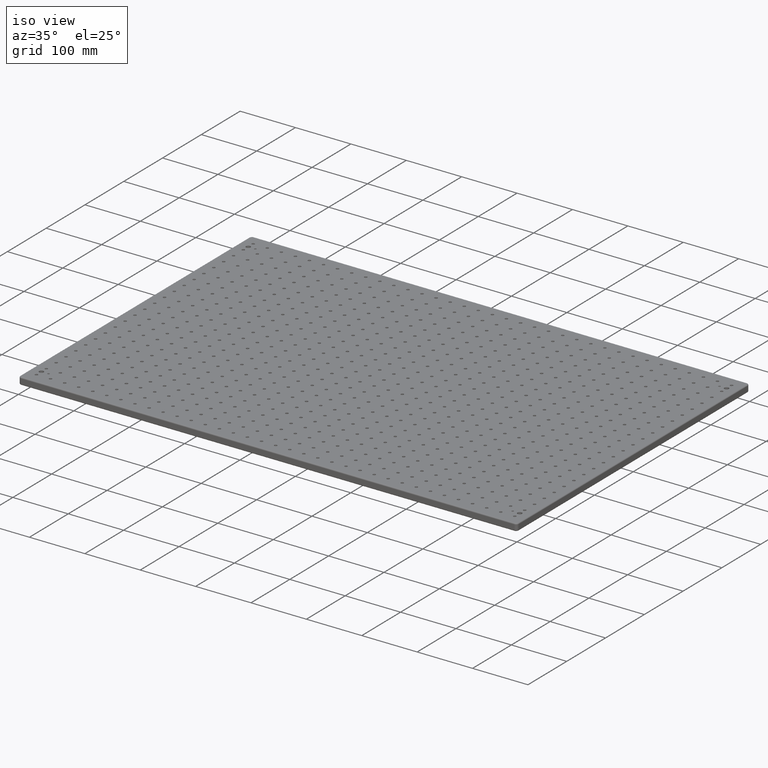
[diagram: clean part render]
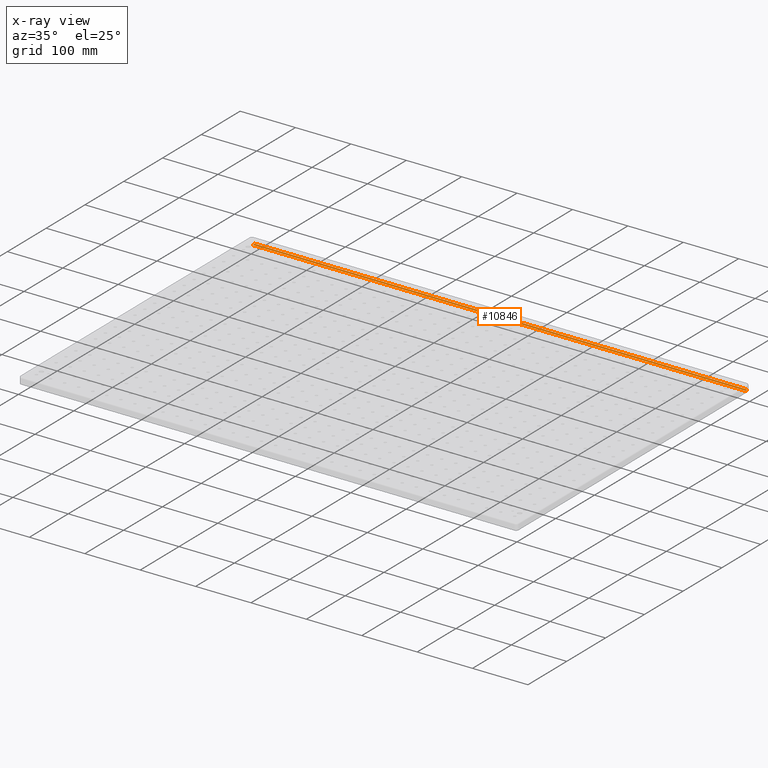
[diagram: x-ray — body ghosted, one internal face saturated and labeled with its STEP entity id]
A machine part, iso view, then the same camera in x-ray: the body is ghosted and one INTERNAL B-rep face — a face not visible from any outside direction — is saturated and labeled: STEP entity #10846.
In plain terms, the highlighted cylindrical surface (edge-blend (fillet) strip) has radius 2 mm, axis along (-1, 0, 0).
Its self-contained STEP definition (entity closure, byte-faithful):
#1026 = VERTEX_POINT ( 'NONE', #3666 ) ;
#2796 = FACE_OUTER_BOUND ( 'NONE', #29589, .T. ) ;
#3124 = DIRECTION ( 'NONE',  ( -1.000000000000000000, 1.233581138472396200E-016, 0.0000000000000000000 ) ) ;
#3666 = CARTESIAN_POINT ( 'NONE',  ( 4.999999999999999100, 600.0000000000000000, -11.00000000000000000 ) ) ;
#5609 = CARTESIAN_POINT ( 'NONE',  ( 0.0000000000000000000, 600.0000000000000000, -11.00000000000000000 ) ) ;
#6933 = DIRECTION ( 'NONE',  ( -1.000000000000000000, 0.0000000000000000000, 0.0000000000000000000 ) ) ;
#7633 = DIRECTION ( 'NONE',  ( -1.233581138472395000E-016, -1.000000000000000000, 0.0000000000000000000 ) ) ;
#9058 = LINE ( 'NONE', #5609, #59295 ) ;
#9468 = CARTESIAN_POINT ( 'NONE',  ( 894.9999999999998900, 599.9999999999998900, -11.00000000000000000 ) ) ;
#10846 = ADVANCED_FACE ( 'NONE', ( #2796 ), #26428, .T. ) ;
#11717 = CARTESIAN_POINT ( 'NONE',  ( 4.999999999999999100, 598.0000000000000000, -11.00000000000000000 ) ) ;
#12104 = CARTESIAN_POINT ( 'NONE',  ( 894.9999999999998900, 597.9999999999997700, -11.00000000000000000 ) ) ;
#12685 = VERTEX_POINT ( 'NONE', #19593 ) ;
#13076 = ORIENTED_EDGE ( 'NONE', *, *, #27589, .T. ) ;
#14388 = AXIS2_PLACEMENT_3D ( 'NONE', #11717, #6933, #16458 ) ;
#14828 = VECTOR ( 'NONE', #21939, 1000.000000000000000 ) ;
#16458 = DIRECTION ( 'NONE',  ( 0.0000000000000000000, 0.0000000000000000000, 1.000000000000000000 ) ) ;
#17807 = AXIS2_PLACEMENT_3D ( 'NONE', #55135, #3124, #7633 ) ;
#19593 = CARTESIAN_POINT ( 'NONE',  ( 894.9999999999998900, 597.9999999999997700, -13.00000000000000000 ) ) ;
#21938 = EDGE_CURVE ( 'NONE', #1026, #39192, #32209, .T. ) ;
#21939 = DIRECTION ( 'NONE',  ( 1.000000000000000000, -1.233581138472396200E-016, -0.0000000000000000000 ) ) ;
#24386 = AXIS2_PLACEMENT_3D ( 'NONE', #12104, #36664, #37097 ) ;
#25233 = DIRECTION ( 'NONE',  ( -1.000000000000000000, 1.233581138472396200E-016, 0.0000000000000000000 ) ) ;
#26428 = CYLINDRICAL_SURFACE ( 'NONE', #17807, 2.000000000000001800 ) ;
#27589 = EDGE_CURVE ( 'NONE', #59304, #12685, #47114, .T. ) ;
#29589 = EDGE_LOOP ( 'NONE', ( #13076, #30605, #33261, #57695 ) ) ;
#30605 = ORIENTED_EDGE ( 'NONE', *, *, #58970, .F. ) ;
#32209 = CIRCLE ( 'NONE', #14388, 2.000000000000000000 ) ;
#32547 = LINE ( 'NONE', #50464, #14828 ) ;
#33261 = ORIENTED_EDGE ( 'NONE', *, *, #21938, .F. ) ;
#33981 = CARTESIAN_POINT ( 'NONE',  ( 4.999999999999999100, 598.0000000000000000, -13.00000000000000000 ) ) ;
#35047 = EDGE_CURVE ( 'NONE', #59304, #1026, #9058, .T. ) ;
#36664 = DIRECTION ( 'NONE',  ( -1.000000000000000000, 0.0000000000000000000, 0.0000000000000000000 ) ) ;
#37097 = DIRECTION ( 'NONE',  ( 0.0000000000000000000, 0.0000000000000000000, 1.000000000000000000 ) ) ;
#39192 = VERTEX_POINT ( 'NONE', #33981 ) ;
#47114 = CIRCLE ( 'NONE', #24386, 2.000000000000000000 ) ;
#50464 = CARTESIAN_POINT ( 'NONE',  ( 7.376815208064927900E-014, 598.0000000000000000, -13.00000000000000000 ) ) ;
#55135 = CARTESIAN_POINT ( 'NONE',  ( -2.467162276944791900E-016, 598.0000000000000000, -11.00000000000000000 ) ) ;
#57695 = ORIENTED_EDGE ( 'NONE', *, *, #35047, .F. ) ;
#58970 = EDGE_CURVE ( 'NONE', #39192, #12685, #32547, .T. ) ;
#59295 = VECTOR ( 'NONE', #25233, 1000.000000000000000 ) ;
#59304 = VERTEX_POINT ( 'NONE', #9468 ) ;